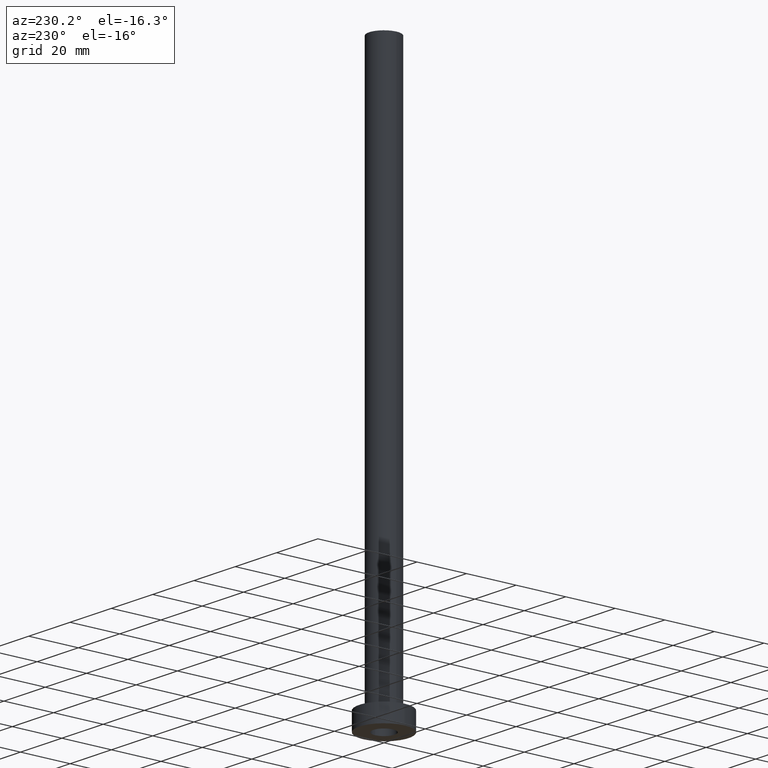
[diagram: clean part render]
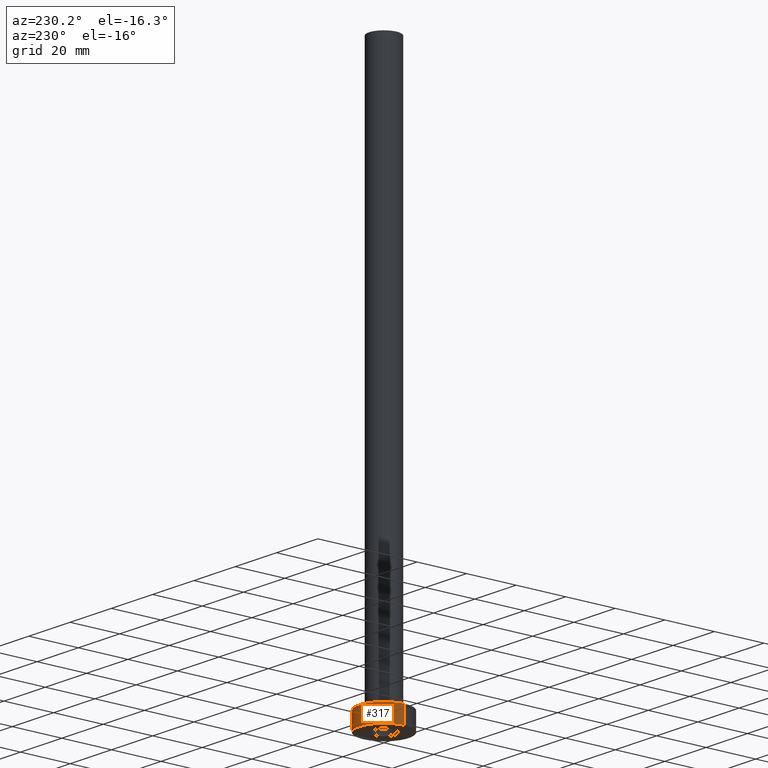
[diagram: same view with one face highlighted and labeled with its STEP entity id]
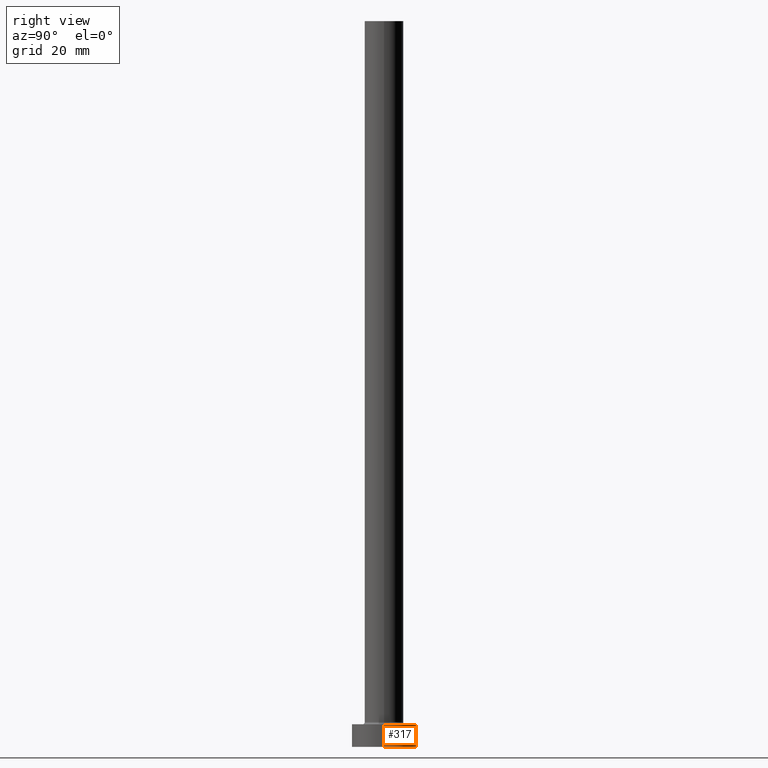
[diagram: same view with one face highlighted and labeled with its STEP entity id]
A machine part, auxiliary view. The second image highlights one B-rep face of the part: STEP entity #317.
A second angle (right view) of the same face is appended — the face is thin or edge-on in the first view.
In plain terms, the highlighted cylindrical surface (edge-blend (fillet) strip) has radius 10 mm, axis along (-0, -0, -1).
Its self-contained STEP definition (entity closure, byte-faithful):
#11 = EDGE_CURVE ( 'NONE', #311, #433, #442, .T. ) ;
#12 = CYLINDRICAL_SURFACE ( 'NONE', #99, 10.00000000000000000 ) ;
#20 = CARTESIAN_POINT ( 'NONE',  ( 10.00000000000000000, 1.224646799147353256E-15, 7.000000000000000000 ) ) ;
#34 = VERTEX_POINT ( 'NONE', #177 ) ;
#80 = DIRECTION ( 'NONE',  ( -0.000000000000000000, -0.000000000000000000, -1.000000000000000000 ) ) ;
#82 = DIRECTION ( 'NONE',  ( -0.000000000000000000, -0.000000000000000000, -1.000000000000000000 ) ) ;
#91 = EDGE_CURVE ( 'NONE', #34, #311, #94, .T. ) ;
#92 = DIRECTION ( 'NONE',  ( 0.000000000000000000, 0.000000000000000000, 1.000000000000000000 ) ) ;
#94 = CIRCLE ( 'NONE', #453, 10.00000000000000000 ) ;
#99 = AXIS2_PLACEMENT_3D ( 'NONE', #178, #80, #206 ) ;
#125 = AXIS2_PLACEMENT_3D ( 'NONE', #151, #92, #353 ) ;
#131 = CARTESIAN_POINT ( 'NONE',  ( 0.000000000000000000, 0.000000000000000000, 7.000000000000000000 ) ) ;
#138 = DIRECTION ( 'NONE',  ( 1.000000000000000000, 0.000000000000000000, 0.000000000000000000 ) ) ;
#146 = ORIENTED_EDGE ( 'NONE', *, *, #408, .T. ) ;
#151 = CARTESIAN_POINT ( 'NONE',  ( 0.000000000000000000, 0.000000000000000000, 0.000000000000000000 ) ) ;
#177 = CARTESIAN_POINT ( 'NONE',  ( 10.00000000000000000, 1.224646799147353256E-15, 7.000000000000000000 ) ) ;
#178 = CARTESIAN_POINT ( 'NONE',  ( 0.000000000000000000, 0.000000000000000000, 7.000000000000000000 ) ) ;
#190 = VERTEX_POINT ( 'NONE', #269 ) ;
#206 = DIRECTION ( 'NONE',  ( -1.000000000000000000, 0.000000000000000000, 0.000000000000000000 ) ) ;
#212 = DIRECTION ( 'NONE',  ( -0.000000000000000000, -0.000000000000000000, -1.000000000000000000 ) ) ;
#232 = VECTOR ( 'NONE', #82, 1000.000000000000000 ) ;
#238 = CARTESIAN_POINT ( 'NONE',  ( -10.00000000000000000, 0.000000000000000000, 7.000000000000000000 ) ) ;
#263 = ORIENTED_EDGE ( 'NONE', *, *, #367, .T. ) ;
#269 = CARTESIAN_POINT ( 'NONE',  ( 10.00000000000000000, 1.224646799147353256E-15, 0.000000000000000000 ) ) ;
#277 = ORIENTED_EDGE ( 'NONE', *, *, #11, .F. ) ;
#285 = CARTESIAN_POINT ( 'NONE',  ( -10.00000000000000000, 0.000000000000000000, 0.000000000000000000 ) ) ;
#302 = DIRECTION ( 'NONE',  ( 0.000000000000000000, 0.000000000000000000, 1.000000000000000000 ) ) ;
#311 = VERTEX_POINT ( 'NONE', #238 ) ;
#317 = ADVANCED_FACE ( 'NONE', ( #394 ), #12, .T. ) ;
#322 = CARTESIAN_POINT ( 'NONE',  ( -10.00000000000000000, 0.000000000000000000, 7.000000000000000000 ) ) ;
#344 = CIRCLE ( 'NONE', #125, 10.00000000000000000 ) ;
#353 = DIRECTION ( 'NONE',  ( 1.000000000000000000, 0.000000000000000000, 0.000000000000000000 ) ) ;
#363 = LINE ( 'NONE', #20, #365 ) ;
#365 = VECTOR ( 'NONE', #212, 1000.000000000000000 ) ;
#367 = EDGE_CURVE ( 'NONE', #34, #190, #363, .T. ) ;
#382 = EDGE_LOOP ( 'NONE', ( #437, #263, #146, #277 ) ) ;
#394 = FACE_OUTER_BOUND ( 'NONE', #382, .T. ) ;
#408 = EDGE_CURVE ( 'NONE', #190, #433, #344, .T. ) ;
#433 = VERTEX_POINT ( 'NONE', #285 ) ;
#437 = ORIENTED_EDGE ( 'NONE', *, *, #91, .F. ) ;
#442 = LINE ( 'NONE', #322, #232 ) ;
#453 = AXIS2_PLACEMENT_3D ( 'NONE', #131, #302, #138 ) ;